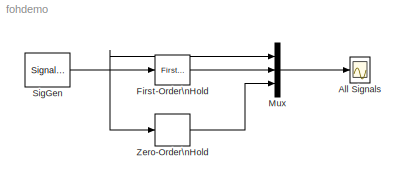
MODEL fohdemo
KIND model
BLOCK [Scope] All Signals
  DataFormat = Array
  NumInputPorts = 1
  Ports = [1]
  TickLabels = on
  TimeRange = 3
BLOCK [Reference] First-Order\nHold  REF=simulink/Discrete/First-Order\nHold
  DisableCoverage = on
  Ports = [1, 1]
  ShowPortLabels = on
  SourceBlock = simulink/Discrete/First-Order\nHold
  SourceType = First-Order Hold
  Ts = 0.1
BLOCK [Mux] Mux
  DisplayOption = bar
  Inputs = 3
  Ports = [3, 1]
BLOCK [SignalGenerator] SigGen
  Amplitude = 5.000000
  Frequency = 1.000000
  Ports = [0, 1]
BLOCK [ZeroOrderHold] Zero-Order\nHold
  SampleTime = 0.1
LINE First-Order\nHold:1 -> Mux:2
LINE Mux:1 -> All Signals:1
NET SigGen:1 -> First-Order\nHold:1, Mux:1, Zero-Order\nHold:1
LINE Zero-Order\nHold:1 -> Mux:3
note: NET lines group one-source signal fan-out (src -> all destinations, sorted); 1:1 wires keep LINE
